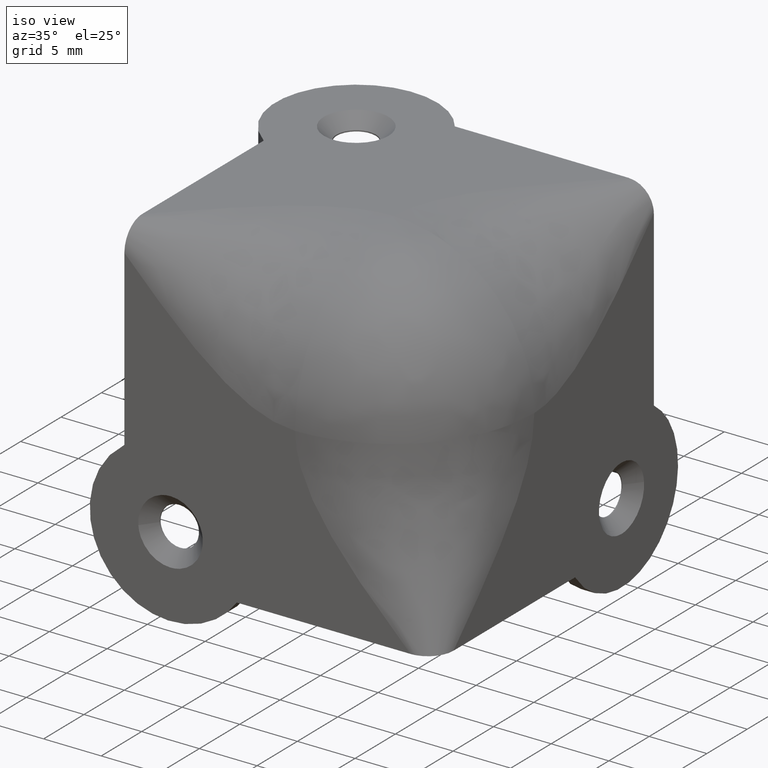
[diagram: clean part render]
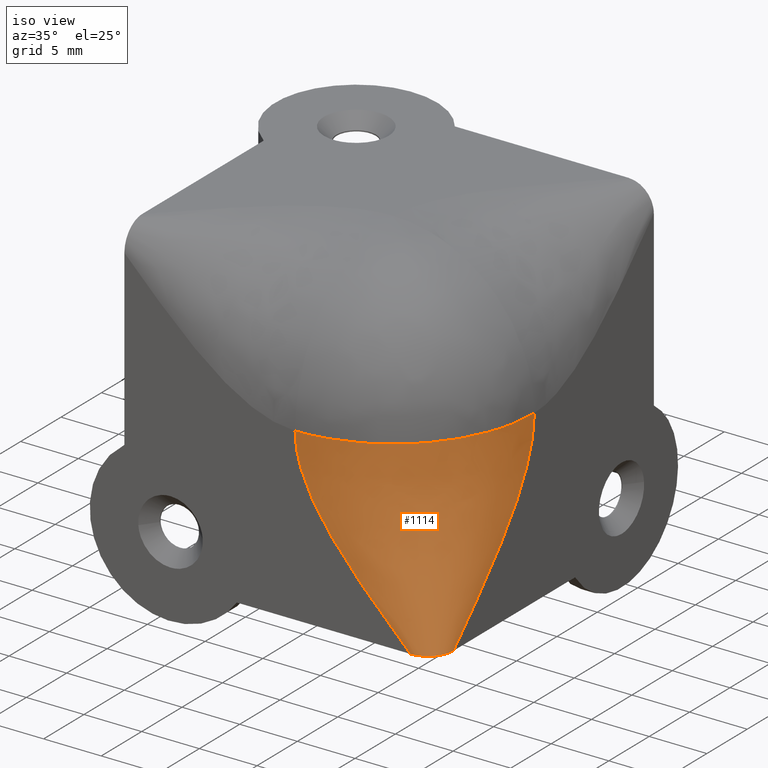
[diagram: same view with one face highlighted and labeled with its STEP entity id]
A machine part, iso view. The second image highlights one B-rep face of the part: STEP entity #1114.
In plain terms, the highlighted face is a freeform B-spline surface patch.
Its self-contained STEP definition (entity closure, byte-faithful):
#1044=CARTESIAN_POINT('',(0.0,12.199999999999999,17.800000000000001));
#1045=CARTESIAN_POINT('',(0.0,0.0,17.799999999999979));
#1046=CARTESIAN_POINT('',(-12.199999999999999,0.0,17.800000000000001));
#1047=CARTESIAN_POINT('',(0.0,12.199999999999999,12.866666666666660));
#1048=CARTESIAN_POINT('',(0.0,0.0,12.866666666666656));
#1049=CARTESIAN_POINT('',(-12.199999999999999,0.0,12.866666666666660));
#1050=CARTESIAN_POINT('',(0.0,7.200000000000000,7.933333333333330));
#1051=CARTESIAN_POINT('',(0.0,0.0,7.933333333333332));
#1052=CARTESIAN_POINT('',(-7.200000000000000,0.0,7.933333333333330));
#1053=CARTESIAN_POINT('',(0.0,2.200000000000000,3.0));
#1054=CARTESIAN_POINT('',(0.0,0.0,3.000000000000001));
#1055=CARTESIAN_POINT('',(-2.200000000000000,0.0,3.0));
#1063=(BOUNDED_SURFACE()B_SPLINE_SURFACE(2,3,((#1044,#1047,#1050,#1053),(#1045,#1048,#1051,#1054),(#1046,#1049,#1052,#1055)),.UNSPECIFIED.,.F.,.F.,.U.)B_SPLINE_SURFACE_WITH_KNOTS((3,3),(4,4),(0.0,20.213621843807040),(0.0,21.072256642324760),.UNSPECIFIED.)GEOMETRIC_REPRESENTATION_ITEM()RATIONAL_B_SPLINE_SURFACE(((1.0,1.0,1.0,1.0),(0.707106781186548,0.707106781186548,0.707106781186548,0.707106781186548),(1.0,1.0,1.0,1.0)))REPRESENTATION_ITEM('')SURFACE());
#1064=CARTESIAN_POINT('',(0.0,2.200000000000000,3.0));
#1065=VERTEX_POINT('',#1064);
#1066=CARTESIAN_POINT('',(-2.200000000000000,0.0,3.0));
#1067=VERTEX_POINT('',#1066);
#1068=CARTESIAN_POINT('',(0.0,2.200000000000000,3.000000000000000));
#1069=CARTESIAN_POINT('',(0.0,0.0,3.000000000000013));
#1070=CARTESIAN_POINT('',(-2.200000000000000,0.0,3.000000000000000));
#1078=(BOUNDED_CURVE()B_SPLINE_CURVE(2,(#1068,#1069,#1070),.UNSPECIFIED.,.F.,.U.)CURVE()GEOMETRIC_REPRESENTATION_ITEM()QUASI_UNIFORM_CURVE()RATIONAL_B_SPLINE_CURVE((0.999999999999999,0.707106781186548,0.999999999999999))REPRESENTATION_ITEM(''));
#1079=EDGE_CURVE('',#1065,#1067,#1078,.T.);
#1080=ORIENTED_EDGE('',*,*,#1079,.F.);
#1081=CARTESIAN_POINT('',(0.0,12.199999999999999,17.800000000000001));
#1082=VERTEX_POINT('',#1081);
#1083=CARTESIAN_POINT('',(0.0,12.199999999999999,17.800000000000001));
#1084=CARTESIAN_POINT('',(0.0,12.199999999999999,12.866666666666660));
#1085=CARTESIAN_POINT('',(0.0,7.200000000000000,7.933333333333330));
#1086=CARTESIAN_POINT('',(0.0,2.200000000000000,3.0));
#1087=B_SPLINE_CURVE_WITH_KNOTS('',3,(#1083,#1084,#1085,#1086),.UNSPECIFIED.,.F.,.U.,(4,4),(0.0,0.872093023255814),.UNSPECIFIED.);
#1088=EDGE_CURVE('',#1082,#1065,#1087,.T.);
#1089=ORIENTED_EDGE('',*,*,#1088,.F.);
#1090=CARTESIAN_POINT('',(-12.199999999999999,0.0,17.800000000000001));
#1091=VERTEX_POINT('',#1090);
#1092=CARTESIAN_POINT('',(0.0,12.199999999999999,17.800000000000001));
#1093=CARTESIAN_POINT('',(0.0,0.0,17.799999999999979));
#1094=CARTESIAN_POINT('',(-12.199999999999999,0.0,17.800000000000001));
#1102=(BOUNDED_CURVE()B_SPLINE_CURVE(2,(#1092,#1093,#1094),.UNSPECIFIED.,.F.,.U.)CURVE()GEOMETRIC_REPRESENTATION_ITEM()QUASI_UNIFORM_CURVE()RATIONAL_B_SPLINE_CURVE((1.0,0.707106781186548,1.0))REPRESENTATION_ITEM(''));
#1103=EDGE_CURVE('',#1082,#1091,#1102,.T.);
#1104=ORIENTED_EDGE('',*,*,#1103,.T.);
#1105=CARTESIAN_POINT('',(-2.200000000000000,0.0,3.0));
#1106=CARTESIAN_POINT('',(-7.200000000000000,0.0,7.933333333333330));
#1107=CARTESIAN_POINT('',(-12.199999999999999,0.0,12.866666666666660));
#1108=CARTESIAN_POINT('',(-12.199999999999999,0.0,17.800000000000001));
#1109=B_SPLINE_CURVE_WITH_KNOTS('',3,(#1105,#1106,#1107,#1108),.UNSPECIFIED.,.F.,.U.,(4,4),(0.0,0.872093023255814),.UNSPECIFIED.);
#1110=EDGE_CURVE('',#1067,#1091,#1109,.T.);
#1111=ORIENTED_EDGE('',*,*,#1110,.F.);
#1112=EDGE_LOOP('',(#1080,#1089,#1104,#1111));
#1113=FACE_OUTER_BOUND('',#1112,.T.);
#1114=ADVANCED_FACE('',(#1113),#1063,.T.);